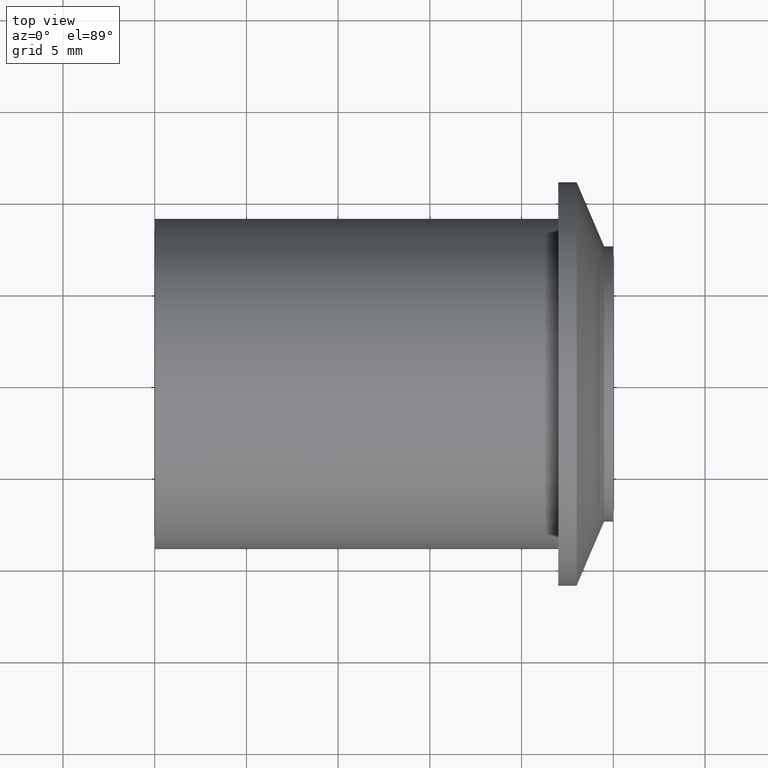
[diagram: clean part render]
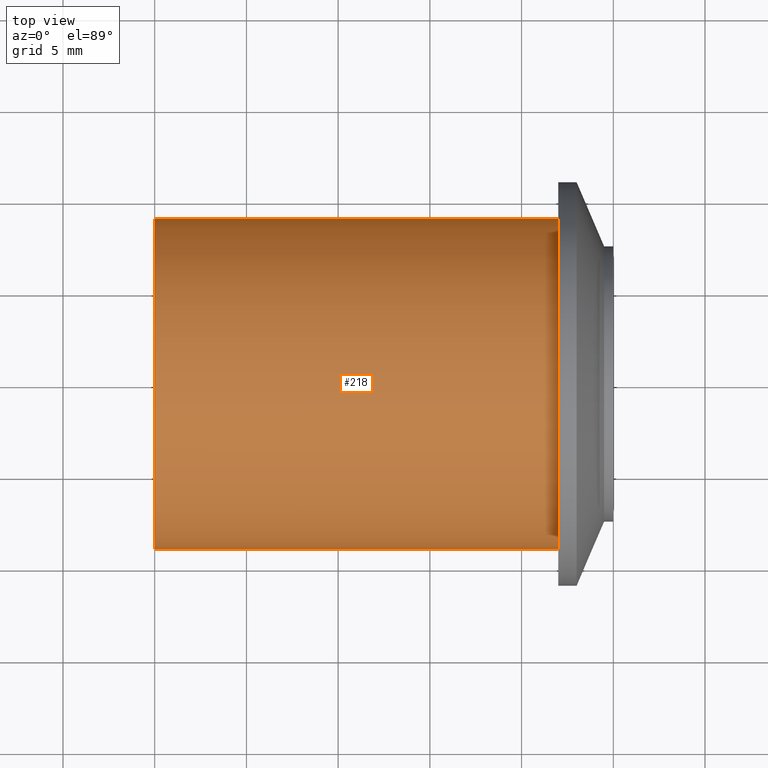
[diagram: same view with one face highlighted and labeled with its STEP entity id]
A machine part, top view. The second image highlights one B-rep face of the part: STEP entity #218.
In plain terms, the highlighted cylindrical surface (bore or boss wall) has radius 9 mm, axis along (1, 0, 0).
Its self-contained STEP definition (entity closure, byte-faithful):
#163=CARTESIAN_POINT('',(-3.0,9.0,0.0));
#164=VERTEX_POINT('',#163);
#165=CARTESIAN_POINT('',(-3.0,-9.0,0.0));
#166=VERTEX_POINT('',#165);
#167=CARTESIAN_POINT('',(-3.0,0.0,0.0));
#168=DIRECTION('',(1.0,0.0,0.0));
#169=DIRECTION('',(0.0,1.0,0.0));
#170=AXIS2_PLACEMENT_3D('',#167,#168,#169);
#171=CIRCLE('',#170,9.0);
#172=EDGE_CURVE('',#164,#166,#171,.T.);
#174=CARTESIAN_POINT('',(-3.0,0.0,0.0));
#175=DIRECTION('',(1.0,0.0,0.0));
#176=DIRECTION('',(0.0,1.0,0.0));
#177=AXIS2_PLACEMENT_3D('',#174,#175,#176);
#178=CIRCLE('',#177,9.0);
#179=EDGE_CURVE('',#166,#164,#178,.T.);
#184=CARTESIAN_POINT('',(-3.0,0.0,0.0));
#185=DIRECTION('',(1.0,0.0,0.0));
#186=DIRECTION('',(0.0,1.0,0.0));
#187=AXIS2_PLACEMENT_3D('',#184,#185,#186);
#188=CYLINDRICAL_SURFACE('',#187,9.0);
#189=CARTESIAN_POINT('',(-25.0,9.0,0.0));
#190=VERTEX_POINT('',#189);
#191=CARTESIAN_POINT('',(-3.0,9.0,0.0));
#192=DIRECTION('',(-1.0,0.0,0.0));
#193=VECTOR('',#192,22.0);
#194=LINE('',#191,#193);
#195=EDGE_CURVE('',#164,#190,#194,.T.);
#196=ORIENTED_EDGE('',*,*,#195,.T.);
#197=CARTESIAN_POINT('',(-25.0,-9.0,0.0));
#198=VERTEX_POINT('',#197);
#199=CARTESIAN_POINT('',(-25.0,0.0,0.0));
#200=DIRECTION('',(1.0,0.0,0.0));
#201=DIRECTION('',(0.0,1.0,0.0));
#202=AXIS2_PLACEMENT_3D('',#199,#200,#201);
#203=CIRCLE('',#202,9.0);
#204=EDGE_CURVE('',#190,#198,#203,.T.);
#205=ORIENTED_EDGE('',*,*,#204,.T.);
#206=CARTESIAN_POINT('',(-25.0,0.0,0.0));
#207=DIRECTION('',(1.0,0.0,0.0));
#208=DIRECTION('',(0.0,1.0,0.0));
#209=AXIS2_PLACEMENT_3D('',#206,#207,#208);
#210=CIRCLE('',#209,9.0);
#211=EDGE_CURVE('',#198,#190,#210,.T.);
#212=ORIENTED_EDGE('',*,*,#211,.T.);
#213=ORIENTED_EDGE('',*,*,#195,.F.);
#214=ORIENTED_EDGE('',*,*,#179,.F.);
#215=ORIENTED_EDGE('',*,*,#172,.F.);
#216=EDGE_LOOP('',(#196,#205,#212,#213,#214,#215));
#217=FACE_OUTER_BOUND('',#216,.T.);
#218=ADVANCED_FACE('',(#217),#188,.T.);